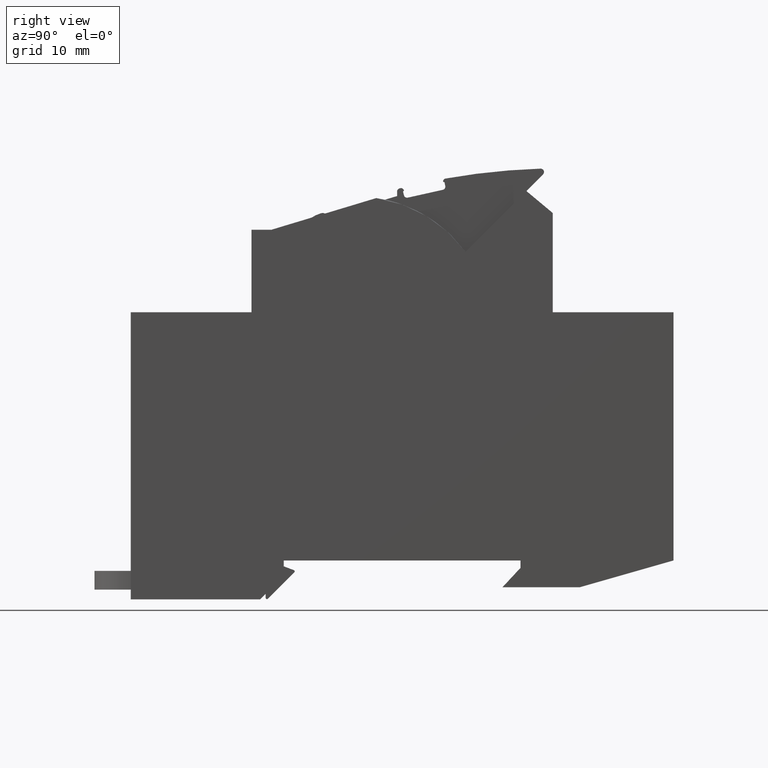
[diagram: clean part render]
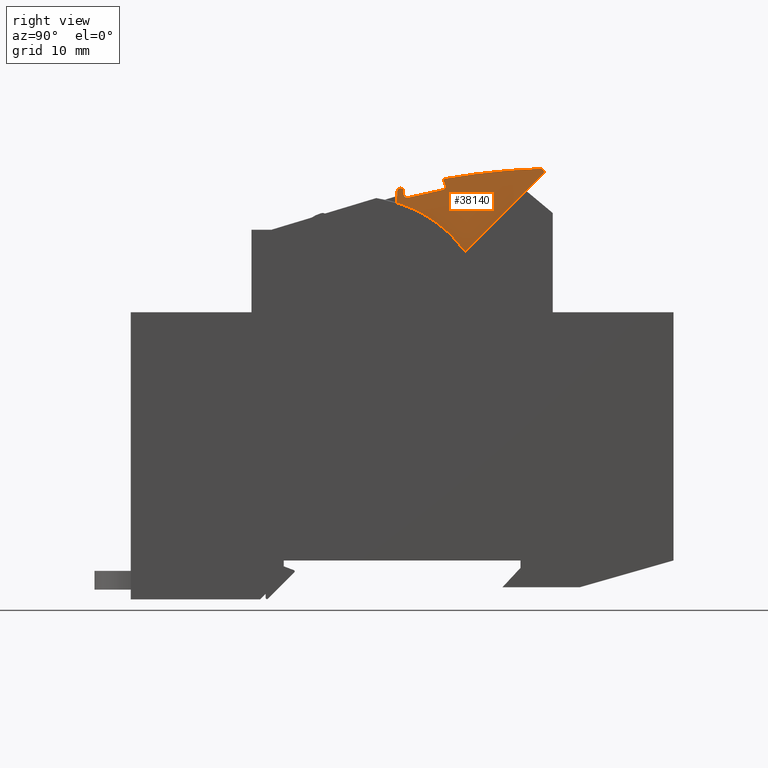
[diagram: same view with one face highlighted and labeled with its STEP entity id]
A machine part, right view. The second image highlights one B-rep face of the part: STEP entity #38140.
In plain terms, the highlighted planar face has unit normal (1, 0, 0).
Its self-contained STEP definition (entity closure, byte-faithful):
#10650=CARTESIAN_POINT('',(-48.552305,-111.620830807894,-17.4));
#10660=VERTEX_POINT('',#10650);
#10690=CARTESIAN_POINT('',(-54.5161453406398,-92.5307127257201,-17.4));
#10700=DIRECTION('',(0.,0.,-1.));
#10710=DIRECTION('',(1.,0.,0.));
#10720=AXIS2_PLACEMENT_3D('',#10690,#10700,#10710);
#10730=CIRCLE('',#10720,20.);
#10740=CARTESIAN_POINT('',(-38.352305,-104.309094,-17.4));
#10750=VERTEX_POINT('',#10740);
#10760=EDGE_CURVE('',#10750,#10660,#10730,.T.);
#11070=CARTESIAN_POINT('',(-142.661399,0.,-17.4));
#11080=DIRECTION('',(-0.707106781186548,0.707106781186548,0.));
#11090=VECTOR('',#11080,1.);
#11100=LINE('',#11070,#11090);
#11110=CARTESIAN_POINT('',(-26.7952979869077,-115.866101013092,-17.4));
#11120=VERTEX_POINT('',#11110);
#11130=CARTESIAN_POINT('',(-29.2795777272727,-113.381821272727,-17.4));
#11140=VERTEX_POINT('',#11130);
#11150=EDGE_CURVE('',#11120,#11140,#11100,.T.);
#31600=CARTESIAN_POINT('',(-142.661399,0.,-17.4));
#31610=DIRECTION('',(-0.707106781186548,0.707106781186548,0.));
#31620=VECTOR('',#31610,1.);
#31630=LINE('',#31600,#31620);
#31640=EDGE_CURVE('',#11140,#10750,#31630,.T.);
#36680=CARTESIAN_POINT('',(-78.174493,-89.306147,-17.4));
#36690=DIRECTION('',(0.,0.,-1.));
#36700=DIRECTION('',(1.,0.,0.));
#36710=AXIS2_PLACEMENT_3D('',#36680,#36690,#36700);
#36720=PLANE('',#36710);
#36730=CARTESIAN_POINT('',(-48.552305,0.,-17.4));
#36740=DIRECTION('',(0.,-1.,0.));
#36750=VECTOR('',#36740,1.);
#36760=LINE('',#36730,#36750);
#36770=CARTESIAN_POINT('',(-48.552305,-113.296390178109,-17.4));
#36780=VERTEX_POINT('',#36770);
#36790=EDGE_CURVE('',#10660,#36780,#36760,.T.);
#36800=ORIENTED_EDGE('',*,*,#36790,.F.);
#36810=CARTESIAN_POINT('',(-48.052305,-113.296390178109,-17.4));
#36820=DIRECTION('',(0.,0.,-1.));
#36830=DIRECTION('',(1.,0.,0.));
#36840=AXIS2_PLACEMENT_3D('',#36810,#36820,#36830);
#36850=CIRCLE('',#36840,0.5);
#36860=CARTESIAN_POINT('',(-48.1736847481964,-113.781433430539,-17.4));
#36870=VERTEX_POINT('',#36860);
#36880=EDGE_CURVE('',#36870,#36780,#36850,.T.);
#36890=ORIENTED_EDGE('',*,*,#36880,.T.);
#36900=CARTESIAN_POINT('',(-23.8977351089165,-16.7727829445584,-17.4));
#36910=DIRECTION('',(0.,0.,-1.));
#36920=DIRECTION('',(1.,0.,0.));
#36930=AXIS2_PLACEMENT_3D('',#36900,#36910,#36920);
#36940=CIRCLE('',#36930,100.);
#36950=CARTESIAN_POINT('',(-48.0661790984347,-113.808272921811,-17.4));
#36960=VERTEX_POINT('',#36950);
#36970=EDGE_CURVE('',#36960,#36870,#36940,.T.);
#36980=ORIENTED_EDGE('',*,*,#36970,.T.);
#36990=CARTESIAN_POINT('',(-47.9695053224766,-113.420130961902,-17.4));
#37000=DIRECTION('',(0.,0.,-1.));
#37010=DIRECTION('',(1.,0.,0.));
#37020=AXIS2_PLACEMENT_3D('',#36990,#37000,#37010);
#37030=CIRCLE('',#37020,0.4);
#37040=CARTESIAN_POINT('',(-47.6748975738955,-113.690697542388,-17.4));
#37050=VERTEX_POINT('',#37040);
#37060=EDGE_CURVE('',#37050,#36960,#37030,.T.);
#37070=ORIENTED_EDGE('',*,*,#37060,.T.);
#37080=CARTESIAN_POINT('',(-25.2802236770954,-89.306147,-17.4));
#37090=DIRECTION('',(0.676416451215306,0.736519371452843,0.));
#37100=VECTOR('',#37090,1.);
#37110=LINE('',#37080,#37100);
#37120=CARTESIAN_POINT('',(-47.5757912456564,-113.582785130662,-17.4));
#37130=VERTEX_POINT('',#37120);
#37140=EDGE_CURVE('',#37050,#37130,#37110,.T.);
#37150=ORIENTED_EDGE('',*,*,#37140,.F.);
#37160=CARTESIAN_POINT('',(-47.6862691513742,-113.48132266298,-17.4));
#37170=DIRECTION('',(0.,0.,-1.));
#37180=DIRECTION('',(0.299636260448568,-0.954053516016999,0.));
#37190=AXIS2_PLACEMENT_3D('',#37160,#37170,#37180);
#37200=CIRCLE('',#37190,0.149999999999967);
#37210=CARTESIAN_POINT('',(-47.6659531850046,-113.332704825859,-17.4));
#37220=VERTEX_POINT('',#37210);
#37230=EDGE_CURVE('',#37220,#37130,#37200,.T.);
#37240=ORIENTED_EDGE('',*,*,#37230,.T.);
#37250=CARTESIAN_POINT('',(-42.3111228146517,-89.306147,-17.4));
#37260=DIRECTION('',(0.217534144564941,0.976052711664897,0.));
#37270=VECTOR('',#37260,1.);
#37280=LINE('',#37250,#37270);
#37290=CARTESIAN_POINT('',(-47.5418452261833,-112.775845533775,-17.4));
#37300=VERTEX_POINT('',#37290);
#37310=EDGE_CURVE('',#37220,#37300,#37280,.T.);
#37320=ORIENTED_EDGE('',*,*,#37310,.F.);
#37330=CARTESIAN_POINT('',(-47.053818870351,-112.884612606057,-17.4));
#37340=DIRECTION('',(0.,0.,-1.));
#37350=DIRECTION('',(0.299636260448568,-0.954053516016999,0.));
#37360=AXIS2_PLACEMENT_3D('',#37330,#37340,#37350);
#37370=CIRCLE('',#37360,0.499999999999787);
#37380=CARTESIAN_POINT('',(-46.9450517980683,-112.396586250224,-17.4));
#37390=VERTEX_POINT('',#37380);
#37400=EDGE_CURVE('',#37300,#37390,#37370,.T.);
#37410=ORIENTED_EDGE('',*,*,#37400,.F.);
#37420=CARTESIAN_POINT('',(-78.174493,-105.436439840174,-17.4));
#37430=DIRECTION('',(0.976052711664827,-0.217534144565255,0.));
#37440=VECTOR('',#37430,1.);
#37450=LINE('',#37420,#37440);
#37460=CARTESIAN_POINT('',(-41.7475711084529,-113.554955570034,-17.4));
#37470=VERTEX_POINT('',#37460);
#37480=EDGE_CURVE('',#37390,#37470,#37450,.T.);
#37490=ORIENTED_EDGE('',*,*,#37480,.F.);
#37500=CARTESIAN_POINT('',(-41.8563381807353,-114.042981925866,-17.4));
#37510=DIRECTION('',(0.,0.,1.));
#37520=DIRECTION('',(-0.16394163465341,0.986470040308963,0.));
#37530=AXIS2_PLACEMENT_3D('',#37500,#37510,#37520);
#37540=CIRCLE('',#37530,0.499999999999825);
#37550=CARTESIAN_POINT('',(-41.3683118249032,-114.151748998148,-17.4));
#37560=VERTEX_POINT('',#37550);
#37570=EDGE_CURVE('',#37560,#37470,#37540,.T.);
#37580=ORIENTED_EDGE('',*,*,#37570,.T.);
#37590=CARTESIAN_POINT('',(-35.8309400085367,-89.306147,-17.4));
#37600=DIRECTION('',(-0.217534144564675,-0.976052711664957,0.));
#37610=VECTOR('',#37600,1.);
#37620=LINE('',#37590,#37610);
#37630=CARTESIAN_POINT('',(-41.4924197837244,-114.708608290234,-17.4));
#37640=VERTEX_POINT('',#37630);
#37650=EDGE_CURVE('',#37560,#37640,#37620,.T.);
#37660=ORIENTED_EDGE('',*,*,#37650,.F.);
#37670=CARTESIAN_POINT('',(-41.537137067886,-114.85178777374,-17.4));
#37680=DIRECTION('',(0.,0.,-1.));
#37690=DIRECTION('',(0.0424991824677273,-0.999096501590099,0.));
#37700=AXIS2_PLACEMENT_3D('',#37670,#37680,#37690);
#37710=CIRCLE('',#37700,0.149999999999663);
#37720=CARTESIAN_POINT('',(-41.6802450952881,-114.896733212806,-17.4));
#37730=VERTEX_POINT('',#37720);
#37740=EDGE_CURVE('',#37730,#37640,#37710,.T.);
#37750=ORIENTED_EDGE('',*,*,#37740,.T.);
#37760=CARTESIAN_POINT('',(-49.7173912580212,-89.306147,-17.4));
#37770=DIRECTION('',(0.299636260441673,-0.954053516019165,0.));
#37780=VECTOR('',#37770,1.);
#37790=LINE('',#37760,#37780);
#37800=CARTESIAN_POINT('',(-41.6577831390421,-114.968252955782,-17.4));
#37810=VERTEX_POINT('',#37800);
#37820=EDGE_CURVE('',#37730,#37810,#37790,.T.);
#37830=ORIENTED_EDGE('',*,*,#37820,.F.);
#37840=CARTESIAN_POINT('',(-41.2761617326345,-114.848398451606,-17.4));
#37850=DIRECTION('',(0.,0.,1.));
#37860=DIRECTION('',(0.0447395374250884,0.998998685580211,0.));
#37870=AXIS2_PLACEMENT_3D('',#37840,#37850,#37860);
#37880=CIRCLE('',#37870,0.4);
#37890=CARTESIAN_POINT('',(-41.3966578846399,-115.229817744969,-17.4));
#37900=VERTEX_POINT('',#37890);
#37910=EDGE_CURVE('',#37810,#37900,#37880,.T.);
#37920=ORIENTED_EDGE('',*,*,#37910,.F.);
#37930=CARTESIAN_POINT('',(-23.8977351089165,-16.7727829445584,-17.4));
#37940=DIRECTION('',(0.,0.,-1.));
#37950=DIRECTION('',(1.,0.,0.));
#37960=AXIS2_PLACEMENT_3D('',#37930,#37940,#37950);
#37970=CIRCLE('',#37960,100.);
#37980=CARTESIAN_POINT('',(-27.1651886451824,-116.719387426093,-17.4));
#37990=VERTEX_POINT('',#37980);
#38000=EDGE_CURVE('',#37990,#37900,#37970,.T.);
#38010=ORIENTED_EDGE('',*,*,#38000,.T.);
#38020=CARTESIAN_POINT('',(-27.148851377501,-116.219654403686,-17.4));
#38030=DIRECTION('',(0.,0.,-1.));
#38040=DIRECTION('',(1.,0.,0.));
#38050=AXIS2_PLACEMENT_3D('',#38020,#38030,#38040);
#38060=CIRCLE('',#38050,0.5);
#38070=EDGE_CURVE('',#11120,#37990,#38060,.T.);
#38080=ORIENTED_EDGE('',*,*,#38070,.T.);
#38090=ORIENTED_EDGE('',*,*,#11150,.F.);
#38100=ORIENTED_EDGE('',*,*,#31640,.F.);
#38110=ORIENTED_EDGE('',*,*,#10760,.F.);
#38120=EDGE_LOOP('',(#38110,#38100,#38090,#38080,#38010,#37920,#37830,
#37750,#37660,#37580,#37490,#37410,#37320,#37240,#37150,#37070,#36980,
#36890,#36800));
#38130=FACE_OUTER_BOUND('',#38120,.T.);
#38140=ADVANCED_FACE('',(#38130),#36720,.T.);